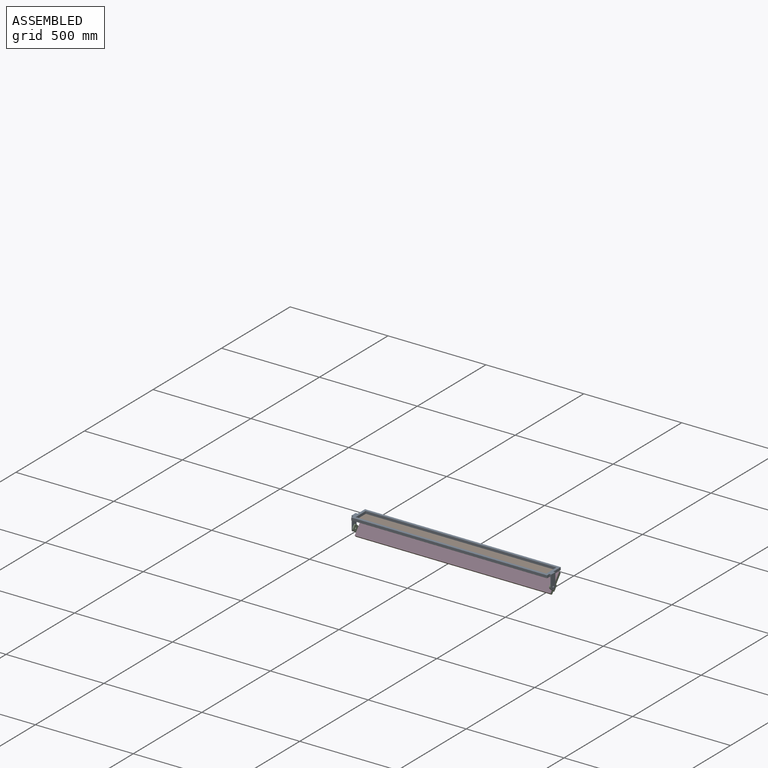
[diagram: assembled view]
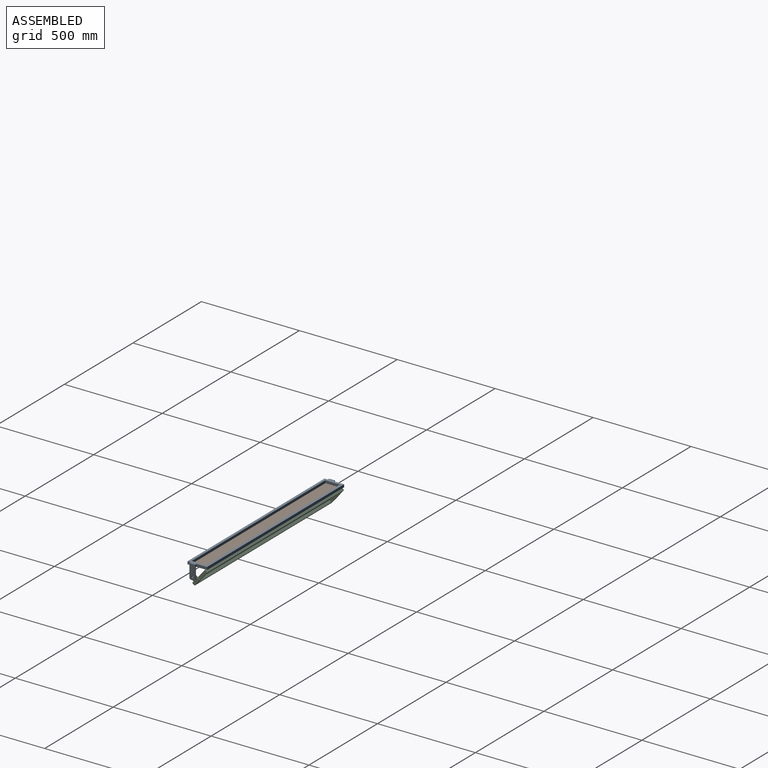
[diagram: assembled view, second angle]
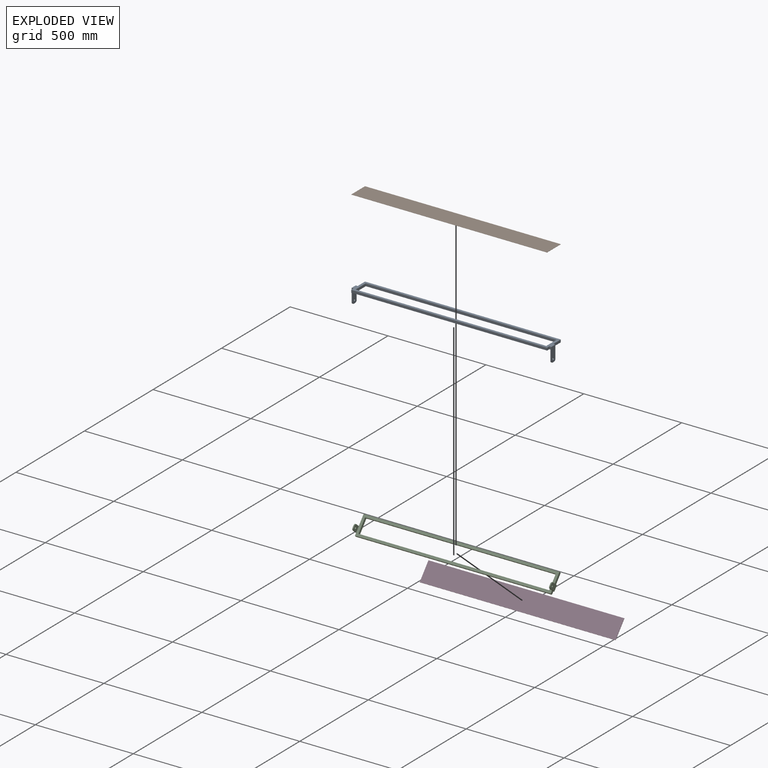
[diagram: exploded view]
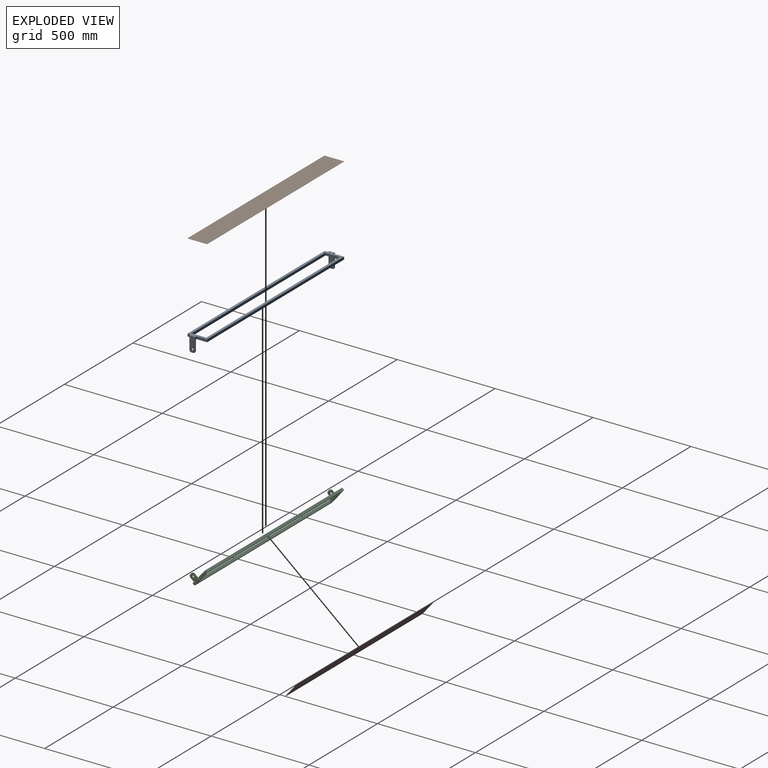
[diagram: exploded view, second angle]
ASSEMBLY  parts=4 mates=4
PART A: 28 faces, bbox 1020x100x75.4 mm
  f0: plane 10x5mm, normal (0,0,-1), area 50mm2, adj f2,f3,f21,f26
  f1: cylinder r=5mm len=10mm, axis (-1,0,0), area 157.1mm2, adj f21,f26
  f2: cylinder r=10mm len=10mm, axis (1,0,0), area 78.5mm2, adj f0,f21,f22,f26
  f3: cylinder r=10mm len=10mm, axis (-1,0,0), area 78.5mm2, adj f0,f20,f21,f26
  f4: plane 53.53x13mm, normal (1,0,0), area 695.9mm2, adj f6,f7,f11,f20
  f5: plane 16.47x13mm, normal (-1,0,0), area 214.1mm2, adj f6,f7,f9,f16
  f6: plane 1020x100mm, normal (0,0,1), area 28524mm2, adj f4,f5,f8,f9,f10,f11,f12,f13
  f7: plane 1010x100mm, normal (0,0,-1), area 28224mm2, adj f4,f5,f8,f9,f10,f11,f12,f13
  f8: plane 53.53x13mm, normal (-1,0,0), area 695.9mm2, adj f6,f7,f11,f18
  f9: plane 1000x13mm, normal (0,-1,0), area 13000mm2, adj f5,f6,f7,f10
  f10: plane 16.47x13mm, normal (1,0,0), area 214.1mm2, adj f6,f7,f9,f22
  f11: plane 1000x13mm, normal (0,1,0), area 13000mm2, adj f4,f6,f7,f8
  f12: plane 74x13mm, normal (1,0,0), area 962mm2, adj f6,f7,f13,f15
  f13: plane 974x13mm, normal (0,1,0), area 12662mm2, adj f6,f7,f12,f14
  f14: plane 74x13mm, normal (-1,0,0), area 962mm2, adj f6,f7,f13,f15
  f15: plane 974x13mm, normal (0,-1,0), area 12662mm2, adj f6,f7,f12,f14
  f16: plane 65.43x10mm, normal (0,-1,0), area 392.1mm2, adj f5,f6,f7,f17,f25,f27
  f17: plane 75.43x30mm, normal (-1,0,0), area 2141.4mm2, adj f6,f16,f18,f19,f23,f24,f25
  f18: plane 65.43x10mm, normal (0,1,0), area 392.1mm2, adj f6,f7,f8,f17,f24,f27
  f19: plane 10x5mm, normal (0,0,-1), area 50mm2, adj f17,f24,f25,f27
  f20: plane 65.43x10mm, normal (0,1,0), area 392.2mm2, adj f3,f4,f6,f7,f21,f26
  f21: plane 75.43x30mm, normal (1,0,0), area 2141.4mm2, adj f0,f1,f2,f3,f6,f20,f22
  f22: plane 65.43x10mm, normal (0,-1,0), area 392.2mm2, adj f2,f6,f7,f10,f21,f26
  f23: cylinder r=5mm len=10mm, axis (-1,0,0), area 157.1mm2, adj f17,f27
  f24: cylinder r=10mm len=10mm, axis (1,0,0), area 78.5mm2, adj f17,f18,f19,f27
  f25: cylinder r=10mm len=10mm, axis (-1,0,0), area 78.5mm2, adj f16,f17,f19,f27
  f26: plane 62.43x30mm, normal (-1,0,0), area 1751.4mm2, adj f0,f1,f2,f3,f7,f20,f22
  f27: plane 62.43x30mm, normal (1,0,0), area 1751.4mm2, adj f7,f16,f18,f19,f23,f24,f25
PART B: 6 faces, bbox 1000x100x0.7 mm
  f0: plane 100x0.65mm, normal (1,0,0), area 65mm2, adj f1,f3,f4,f5
  f1: plane 1000x0.65mm, normal (0,1,0), area 650mm2, adj f0,f2,f4,f5
  f2: plane 100x0.65mm, normal (-1,0,0), area 65mm2, adj f1,f3,f4,f5
  f3: plane 1000x0.65mm, normal (0,-1,0), area 650mm2, adj f0,f2,f4,f5
  f4: plane 1000x100mm, normal (0,0,1), area 100000mm2, adj f0,f1,f2,f3
  f5: plane 1000x100mm, normal (0,0,-1), area 100000mm2, adj f0,f1,f2,f3
PART C: 28 faces, bbox 1010x100x45.7 mm
  f0: plane 15.15x13mm, normal (1,0,0), area 197mm2, adj f2,f3,f7,f18
  f1: plane 54.85x13mm, normal (-1,0,0), area 713mm2, adj f2,f3,f5,f13
  f2: plane 1010x100mm, normal (0,0,1), area 28224mm2, adj f0,f1,f4,f5,f6,f7,f8,f9
  f3: plane 1000x100mm, normal (0,0,-1), area 27924mm2, adj f0,f1,f4,f5,f6,f7,f8,f9
  f4: plane 15.15x13mm, normal (-1,0,0), area 197mm2, adj f2,f3,f7,f15
  f5: plane 1000x13mm, normal (0,-1,0), area 13000mm2, adj f1,f2,f3,f6
  f6: plane 54.85x13mm, normal (1,0,0), area 713.1mm2, adj f2,f3,f5,f20
  f7: plane 1000x13mm, normal (0,1,0), area 13000mm2, adj f0,f2,f3,f4
  f8: plane 74x13mm, normal (1,0,0), area 962mm2, adj f2,f3,f9,f11
  f9: plane 974x13mm, normal (0,1,0), area 12662mm2, adj f2,f3,f8,f10
  f10: plane 74x13mm, normal (-1,0,0), area 962mm2, adj f2,f3,f9,f11
  f11: plane 974x13mm, normal (0,-1,0), area 12662mm2, adj f2,f3,f8,f10
  f12: plane 32.72x30mm, normal (1,0,0), area 860.1mm2, adj f3,f13,f15,f16,f23,f26,f27
  f13: plane 35.72x5mm, normal (0,-1,0), area 178.6mm2, adj f1,f2,f12,f14,f27
  f14: plane 45.72x30mm, normal (-1,0,0), area 1250.1mm2, adj f2,f13,f15,f16,f23,f26,f27
  f15: plane 35.72x5mm, normal (0,1,0), area 178.6mm2, adj f2,f4,f12,f14,f26
  f16: plane 10x5mm, normal (0,0,-1), area 50mm2, adj f12,f14,f26,f27
  f17: plane 32.72x30mm, normal (-1,0,0), area 860.1mm2, adj f3,f18,f20,f21,f22,f24,f25
  f18: plane 35.72x5mm, normal (0,1,0), area 178.6mm2, adj f0,f2,f17,f19,f25
  f19: plane 45.72x30mm, normal (1,0,0), area 1250.1mm2, adj f2,f18,f20,f21,f22,f24,f25
  f20: plane 35.72x5mm, normal (0,-1,0), area 178.6mm2, adj f2,f6,f17,f19,f24
  f21: plane 10x5mm, normal (0,0,-1), area 50mm2, adj f17,f19,f24,f25
  f22: cylinder r=5mm len=10mm, axis (-1,0,0), area 157.1mm2, adj f17,f19
  f23: cylinder r=5mm len=10mm, axis (-1,0,0), area 157.1mm2, adj f12,f14
  f24: cylinder r=10mm len=10mm, axis (1,0,0), area 78.5mm2, adj f17,f19,f20,f21
  f25: cylinder r=10mm len=10mm, axis (-1,0,0), area 78.5mm2, adj f17,f18,f19,f21
  f26: cylinder r=10mm len=10mm, axis (1,0,0), area 78.5mm2, adj f12,f14,f15,f16
  f27: cylinder r=10mm len=10mm, axis (-1,0,0), area 78.5mm2, adj f12,f13,f14,f16
PART D: 6 faces, bbox 1000x100x2.2 mm
  f0: plane 100x2.15mm, normal (1,0,0), area 215mm2, adj f1,f3,f4,f5
  f1: plane 1000x2.15mm, normal (0,1,0), area 2150mm2, adj f0,f2,f4,f5
  f2: plane 100x2.15mm, normal (-1,0,0), area 215mm2, adj f1,f3,f4,f5
  f3: plane 1000x2.15mm, normal (0,-1,0), area 2150mm2, adj f0,f2,f4,f5
  f4: plane 1000x100mm, normal (0,0,1), area 100000mm2, adj f0,f1,f2,f3
  f5: plane 1000x100mm, normal (0,0,-1), area 100000mm2, adj f0,f1,f2,f3
PLACE A t=(28.57,49.57,-168.91)mm fixed
PLACE B t=(528.57,99.38,-169.56)mm
PLACE C rot(axis=(-1,0,0),129.8deg) t=(28.57,139.39,-174.06)mm
PLACE D rot(axis=(1,0,0),50.2deg) t=(528.57,107.37,-212.45)mm
MATE planar B.f4 <-> A.f7  axis (0,0,1) through (528.57,99.38,-168.91)mm
MATE fastened D.f5 <-> C.f3  axis (0,-0.77,0.64) through (1028.57,139.39,-174.06)mm
MATE revolute C.f22 <-> A.f1  axis (1,0,0) through (1033.57,81.04,-216.34)mm
MATE planar D.f5 <-> C.f3  axis (0,0.77,-0.64) through (528.57,107.37,-212.45)mm
